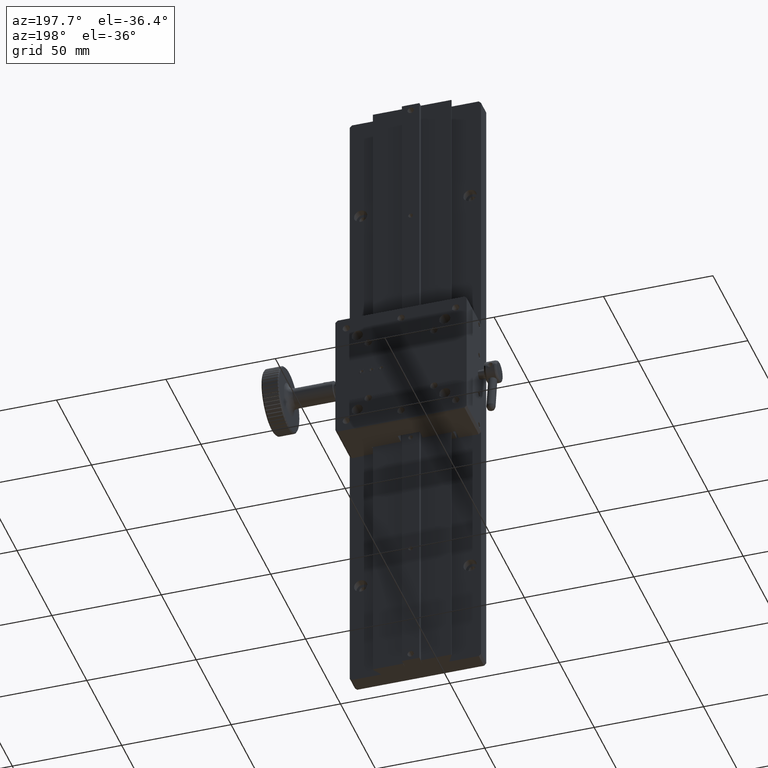
[diagram: clean part render]
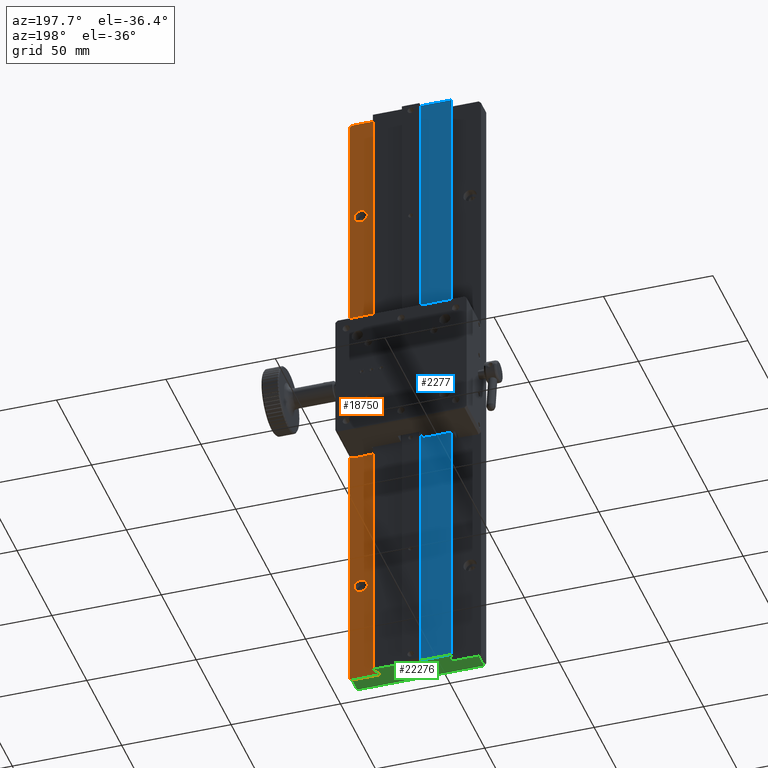
[diagram: same view with three faces highlighted in distinct colors, each labeled with its STEP entity id]
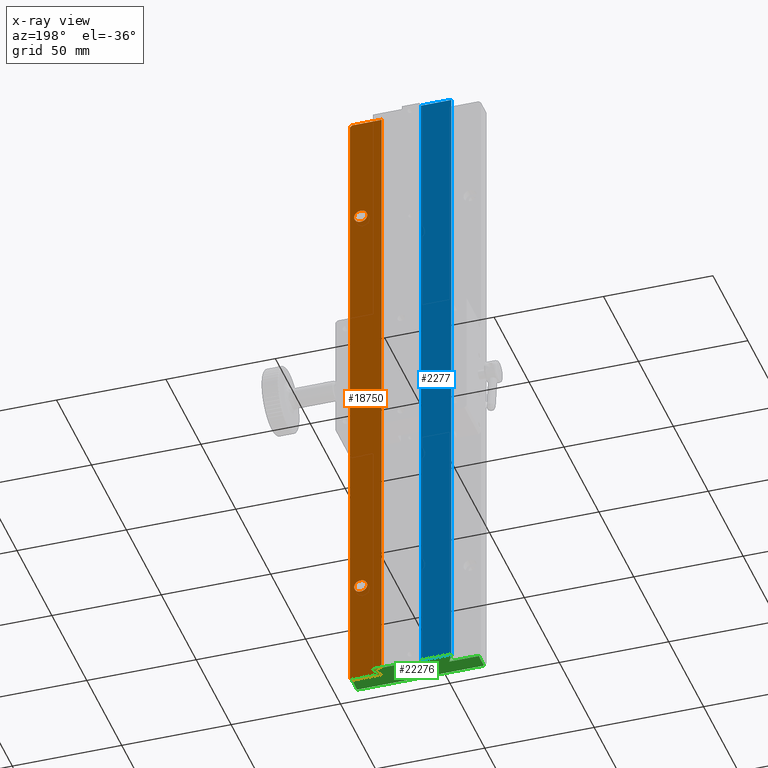
[diagram: x-ray of the same camera — body ghosted, the three highlighted faces saturated]
A machine part, auxiliary view with three faces highlighted in distinct colors.
The next image is the same camera in x-ray (body ghosted, the three faces saturated) — at least one of them is partly hidden behind the body in this view.
Their STEP definitions:

[orange] entity #18750 — the highlighted planar face has unit normal (0, -1, 0).
#1212 = LINE ( 'NONE', #18294, #95864 ) ;
#2944 = DIRECTION ( 'NONE',  ( -6.982962677686266711E-15, 1.000000000000000000, 0.000000000000000000 ) ) ;
#2988 = VERTEX_POINT ( 'NONE', #66135 ) ;
#4184 = EDGE_CURVE ( 'NONE', #31973, #60785, #65015, .T. ) ;
#4363 = VERTEX_POINT ( 'NONE', #55194 ) ;
#5016 = DIRECTION ( 'NONE',  ( -1.000000000000000000, -6.938893903907222067E-15, 0.000000000000000000 ) ) ;
#7829 = EDGE_LOOP ( 'NONE', ( #47907, #10947, #77065, #24055, #78089, #79209 ) ) ;
#8127 = CARTESIAN_POINT ( 'NONE',  ( 141.9082209827905956, 59.02535012998670538, 214.1048062710991360 ) ) ;
#8333 = CARTESIAN_POINT ( 'NONE',  ( 128.4082209827906240, 59.02535012998663433, -85.89519372890084981 ) ) ;
#9141 = CARTESIAN_POINT ( 'NONE',  ( 128.4082209827906240, 59.02535012998663433, 214.1048062710991644 ) ) ;
#10947 = ORIENTED_EDGE ( 'NONE', *, *, #54498, .F. ) ;
#11446 = DIRECTION ( 'NONE',  ( -6.982962677686266711E-15, 1.000000000000000000, 0.000000000000000000 ) ) ;
#13249 = ORIENTED_EDGE ( 'NONE', *, *, #99135, .F. ) ;
#14311 = CARTESIAN_POINT ( 'NONE',  ( 142.9082209827905956, 59.02535012998673380, 214.1048062710991644 ) ) ;
#15782 = EDGE_CURVE ( 'NONE', #79137, #79137, #17946, .T. ) ;
#17738 = FACE_BOUND ( 'NONE', #18350, .T. ) ;
#17783 = VECTOR ( 'NONE', #96095, 1000.000000000000000 ) ;
#17946 = CIRCLE ( 'NONE', #79143, 3.000000000000002665 ) ;
#18165 = LINE ( 'NONE', #65256, #43534 ) ;
#18294 = CARTESIAN_POINT ( 'NONE',  ( 112.9082209827906524, 59.02535012998663433, -85.89519372890084981 ) ) ;
#18350 = EDGE_LOOP ( 'NONE', ( #52710 ) ) ;
#18750 = ADVANCED_FACE ( 'NONE', ( #65853, #17738, #79877, #40517 ), #49291, .F. ) ;
#22946 = CIRCLE ( 'NONE', #34552, 3.000000000000002665 ) ;
#24055 = ORIENTED_EDGE ( 'NONE', *, *, #4184, .T. ) ;
#26518 = DIRECTION ( 'NONE',  ( 1.000000000000000000, 6.982962677686266711E-15, 0.000000000000000000 ) ) ;
#28311 = CARTESIAN_POINT ( 'NONE',  ( 137.9082209827905956, 59.02535012998670538, -35.89519372890089244 ) ) ;
#30199 = EDGE_CURVE ( 'NONE', #4363, #60785, #57035, .T. ) ;
#31973 = VERTEX_POINT ( 'NONE', #9141 ) ;
#34530 = DIRECTION ( 'NONE',  ( -1.000000000000000000, -6.938893903907222067E-15, 0.000000000000000000 ) ) ;
#34552 = AXIS2_PLACEMENT_3D ( 'NONE', #28311, #2944, #5016 ) ;
#37109 = LINE ( 'NONE', #14311, #99842 ) ;
#40517 = FACE_BOUND ( 'NONE', #54236, .T. ) ;
#40525 = CARTESIAN_POINT ( 'NONE',  ( 141.9082209827905956, 59.02535012998670538, -85.89519372890083559 ) ) ;
#42682 = VECTOR ( 'NONE', #47333, 1000.000000000000114 ) ;
#43534 = VECTOR ( 'NONE', #57993, 1000.000000000000000 ) ;
#44665 = EDGE_CURVE ( 'NONE', #2988, #2988, #22946, .T. ) ;
#47333 = DIRECTION ( 'NONE',  ( -0.7071067811865474617, -4.906538933386793298E-15, 0.7071067811865474617 ) ) ;
#47907 = ORIENTED_EDGE ( 'NONE', *, *, #50070, .F. ) ;
#49291 = PLANE ( 'NONE',  #98873 ) ;
#49919 = CARTESIAN_POINT ( 'NONE',  ( 142.9082209827905956, 59.02535012998672670, -84.89519372890084981 ) ) ;
#50070 = EDGE_CURVE ( 'NONE', #55115, #51987, #73244, .T. ) ;
#50326 = CARTESIAN_POINT ( 'NONE',  ( 142.9082209827905956, 59.02535012998673380, -84.89519372890083559 ) ) ;
#51093 = CARTESIAN_POINT ( 'NONE',  ( 137.9082209827905956, 59.02535012998670538, 164.1048062710991360 ) ) ;
#51987 = VERTEX_POINT ( 'NONE', #50326 ) ;
#52710 = ORIENTED_EDGE ( 'NONE', *, *, #44665, .F. ) ;
#53114 = VERTEX_POINT ( 'NONE', #8333 ) ;
#54236 = EDGE_LOOP ( 'NONE', ( #57219 ) ) ;
#54498 = EDGE_CURVE ( 'NONE', #53114, #55115, #1212, .T. ) ;
#54804 = CARTESIAN_POINT ( 'NONE',  ( 134.9082209827905956, 59.02535012998668407, 64.10480627109913598 ) ) ;
#55115 = VERTEX_POINT ( 'NONE', #40525 ) ;
#55194 = CARTESIAN_POINT ( 'NONE',  ( 142.9082209827905956, 59.02535012998673380, 213.1048062710991644 ) ) ;
#57035 = LINE ( 'NONE', #78433, #42682 ) ;
#57219 = ORIENTED_EDGE ( 'NONE', *, *, #15782, .F. ) ;
#57615 = DIRECTION ( 'NONE',  ( 1.000000000000000000, -0.000000000000000000, 0.000000000000000000 ) ) ;
#57993 = DIRECTION ( 'NONE',  ( 0.000000000000000000, 0.000000000000000000, 1.000000000000000000 ) ) ;
#58039 = CARTESIAN_POINT ( 'NONE',  ( 137.9082209827905956, 59.02535012998670538, 64.10480627109913598 ) ) ;
#58755 = CARTESIAN_POINT ( 'NONE',  ( 134.9082209827905956, 59.02535012998668407, 164.1048062710991360 ) ) ;
#60785 = VERTEX_POINT ( 'NONE', #8127 ) ;
#64840 = DIRECTION ( 'NONE',  ( 6.982962677686266711E-15, -1.000000000000000000, 0.000000000000000000 ) ) ;
#65015 = LINE ( 'NONE', #71759, #17783 ) ;
#65256 = CARTESIAN_POINT ( 'NONE',  ( 128.4082209827906240, 59.02535012998663433, 214.1048062710991644 ) ) ;
#65853 = FACE_OUTER_BOUND ( 'NONE', #7829, .T. ) ;
#66135 = CARTESIAN_POINT ( 'NONE',  ( 134.9082209827905956, 59.02535012998668407, -35.89519372890089244 ) ) ;
#66316 = DIRECTION ( 'NONE',  ( -1.000000000000000000, -6.938893903907222067E-15, 0.000000000000000000 ) ) ;
#67673 = DIRECTION ( 'NONE',  ( 0.000000000000000000, -0.000000000000000000, -1.000000000000000000 ) ) ;
#68733 = AXIS2_PLACEMENT_3D ( 'NONE', #51093, #99253, #34530 ) ;
#71580 = CARTESIAN_POINT ( 'NONE',  ( 142.9082209827905956, 59.02535012998673380, 214.1048062710991644 ) ) ;
#71759 = CARTESIAN_POINT ( 'NONE',  ( 112.9082209827906524, 59.02535012998663433, 214.1048062710991644 ) ) ;
#72325 = EDGE_CURVE ( 'NONE', #53114, #31973, #18165, .T. ) ;
#73244 = LINE ( 'NONE', #49919, #80868 ) ;
#75002 = EDGE_CURVE ( 'NONE', #4363, #51987, #37109, .T. ) ;
#77065 = ORIENTED_EDGE ( 'NONE', *, *, #72325, .T. ) ;
#77581 = EDGE_LOOP ( 'NONE', ( #13249 ) ) ;
#78089 = ORIENTED_EDGE ( 'NONE', *, *, #30199, .F. ) ;
#78433 = CARTESIAN_POINT ( 'NONE',  ( 142.9082209827905956, 59.02535012998673380, 213.1048062710991644 ) ) ;
#79137 = VERTEX_POINT ( 'NONE', #54804 ) ;
#79143 = AXIS2_PLACEMENT_3D ( 'NONE', #58039, #11446, #66316 ) ;
#79209 = ORIENTED_EDGE ( 'NONE', *, *, #75002, .T. ) ;
#79877 = FACE_BOUND ( 'NONE', #77581, .T. ) ;
#80868 = VECTOR ( 'NONE', #91341, 1000.000000000000114 ) ;
#91341 = DIRECTION ( 'NONE',  ( 0.7071067811865474617, -0.000000000000000000, 0.7071067811865474617 ) ) ;
#95864 = VECTOR ( 'NONE', #57615, 1000.000000000000000 ) ;
#96095 = DIRECTION ( 'NONE',  ( 1.000000000000000000, -0.000000000000000000, 0.000000000000000000 ) ) ;
#98114 = VERTEX_POINT ( 'NONE', #58755 ) ;
#98873 = AXIS2_PLACEMENT_3D ( 'NONE', #71580, #64840, #26518 ) ;
#99135 = EDGE_CURVE ( 'NONE', #98114, #98114, #101751, .T. ) ;
#99253 = DIRECTION ( 'NONE',  ( -6.982962677686266711E-15, 1.000000000000000000, 0.000000000000000000 ) ) ;
#99842 = VECTOR ( 'NONE', #67673, 1000.000000000000000 ) ;
#101751 = CIRCLE ( 'NONE', #68733, 3.000000000000002665 ) ;

[blue] entity #2277 — the highlighted planar face has unit normal (0, -1, 0).
#2277 = ADVANCED_FACE ( 'NONE', ( #70855 ), #21222, .F. ) ;
#4333 = CARTESIAN_POINT ( 'NONE',  ( 94.99467471759916748, 63.72535012998639559, -85.89519372890083559 ) ) ;
#5889 = LINE ( 'NONE', #29696, #42768 ) ;
#7558 = VERTEX_POINT ( 'NONE', #4333 ) ;
#8192 = ORIENTED_EDGE ( 'NONE', *, *, #50300, .T. ) ;
#11491 = VECTOR ( 'NONE', #65033, 1000.000000000000000 ) ;
#11735 = VERTEX_POINT ( 'NONE', #80228 ) ;
#14459 = DIRECTION ( 'NONE',  ( 1.000000000000000000, 7.227918770390267180E-15, 0.000000000000000000 ) ) ;
#19001 = ORIENTED_EDGE ( 'NONE', *, *, #34351, .T. ) ;
#21222 = PLANE ( 'NONE',  #91166 ) ;
#22233 = CARTESIAN_POINT ( 'NONE',  ( 94.69467471759924138, 63.72535012998639559, 214.1048062710991644 ) ) ;
#29696 = CARTESIAN_POINT ( 'NONE',  ( 112.9082209827906524, 63.72535012998639559, 214.1048062710991644 ) ) ;
#32422 = EDGE_CURVE ( 'NONE', #85242, #7558, #48461, .T. ) ;
#34281 = CARTESIAN_POINT ( 'NONE',  ( 112.9082209827906524, 63.72535012998639559, -85.89519372890084981 ) ) ;
#34351 = EDGE_CURVE ( 'NONE', #11735, #94101, #84150, .T. ) ;
#37033 = CARTESIAN_POINT ( 'NONE',  ( 108.8582209827905700, 63.72535012998649506, 214.1048062710991644 ) ) ;
#42768 = VECTOR ( 'NONE', #53488, 1000.000000000000000 ) ;
#48461 = LINE ( 'NONE', #88854, #11491 ) ;
#48785 = LINE ( 'NONE', #34281, #77029 ) ;
#50300 = EDGE_CURVE ( 'NONE', #85242, #11735, #5889, .T. ) ;
#52635 = EDGE_LOOP ( 'NONE', ( #72843, #8192, #19001, #84612 ) ) ;
#52779 = DIRECTION ( 'NONE',  ( 7.227918770390267180E-15, -1.000000000000000000, 0.000000000000000000 ) ) ;
#53488 = DIRECTION ( 'NONE',  ( 1.000000000000000000, -0.000000000000000000, 0.000000000000000000 ) ) ;
#65033 = DIRECTION ( 'NONE',  ( 0.000000000000000000, -0.000000000000000000, -1.000000000000000000 ) ) ;
#67077 = DIRECTION ( 'NONE',  ( -0.000000000000000000, -0.000000000000000000, -1.000000000000000000 ) ) ;
#70855 = FACE_OUTER_BOUND ( 'NONE', #52635, .T. ) ;
#72843 = ORIENTED_EDGE ( 'NONE', *, *, #32422, .F. ) ;
#77029 = VECTOR ( 'NONE', #90195, 1000.000000000000000 ) ;
#80228 = CARTESIAN_POINT ( 'NONE',  ( 108.8582209827905700, 63.72535012998648085, 214.1048062710991644 ) ) ;
#84150 = LINE ( 'NONE', #37033, #84393 ) ;
#84393 = VECTOR ( 'NONE', #67077, 1000.000000000000000 ) ;
#84612 = ORIENTED_EDGE ( 'NONE', *, *, #100301, .F. ) ;
#85242 = VERTEX_POINT ( 'NONE', #98977 ) ;
#85907 = CARTESIAN_POINT ( 'NONE',  ( 108.8582209827905700, 63.72535012998648085, -85.89519372890083559 ) ) ;
#88854 = CARTESIAN_POINT ( 'NONE',  ( 94.99467471759916748, 63.72535012998639559, 214.1048062710991644 ) ) ;
#90195 = DIRECTION ( 'NONE',  ( 1.000000000000000000, -0.000000000000000000, 0.000000000000000000 ) ) ;
#91166 = AXIS2_PLACEMENT_3D ( 'NONE', #22233, #52779, #14459 ) ;
#94101 = VERTEX_POINT ( 'NONE', #85907 ) ;
#98977 = CARTESIAN_POINT ( 'NONE',  ( 94.99467471759916748, 63.72535012998639559, 214.1048062710991360 ) ) ;
#100301 = EDGE_CURVE ( 'NONE', #7558, #94101, #48785, .T. ) ;

[green] entity #22276 — the highlighted planar face has unit normal (0, 0, -1).
#93 = CARTESIAN_POINT ( 'NONE',  ( 141.9082209827906524, 51.52535012998672670, -85.89519372890083559 ) ) ;
#1212 = LINE ( 'NONE', #18294, #95864 ) ;
#2809 = VERTEX_POINT ( 'NONE', #65137 ) ;
#4333 = CARTESIAN_POINT ( 'NONE',  ( 94.99467471759916748, 63.72535012998639559, -85.89519372890083559 ) ) ;
#7558 = VERTEX_POINT ( 'NONE', #4333 ) ;
#8333 = CARTESIAN_POINT ( 'NONE',  ( 128.4082209827906240, 59.02535012998663433, -85.89519372890084981 ) ) ;
#9431 = VERTEX_POINT ( 'NONE', #93 ) ;
#11168 = EDGE_CURVE ( 'NONE', #55115, #9431, #25322, .T. ) ;
#14524 = VECTOR ( 'NONE', #47698, 1000.000000000000000 ) ;
#14606 = FACE_OUTER_BOUND ( 'NONE', #61898, .T. ) ;
#14670 = VERTEX_POINT ( 'NONE', #21389 ) ;
#15410 = ORIENTED_EDGE ( 'NONE', *, *, #68554, .T. ) ;
#16030 = VECTOR ( 'NONE', #61657, 1000.000000000000114 ) ;
#18277 = DIRECTION ( 'NONE',  ( 0.000000000000000000, 1.000000000000000000, 0.000000000000000000 ) ) ;
#18294 = CARTESIAN_POINT ( 'NONE',  ( 112.9082209827906524, 59.02535012998663433, -85.89519372890084981 ) ) ;
#18787 = ORIENTED_EDGE ( 'NONE', *, *, #65530, .T. ) ;
#19355 = AXIS2_PLACEMENT_3D ( 'NONE', #21371, #77781, #101584 ) ;
#19859 = CARTESIAN_POINT ( 'NONE',  ( 112.9082209827906524, 61.42535012998649080, -85.89519372890084981 ) ) ;
#21371 = CARTESIAN_POINT ( 'NONE',  ( 112.9082209827906524, 51.52535012998652775, -85.89519372890084981 ) ) ;
#21389 = CARTESIAN_POINT ( 'NONE',  ( 116.9582209827906070, 61.42535012998680344, -85.89519372890083559 ) ) ;
#21565 = CARTESIAN_POINT ( 'NONE',  ( 142.9082209827906524, 51.52535012998673380, -85.89519372890083559 ) ) ;
#22276 = ADVANCED_FACE ( 'NONE', ( #14606 ), #37907, .T. ) ;
#24078 = ORIENTED_EDGE ( 'NONE', *, *, #100301, .T. ) ;
#25322 = LINE ( 'NONE', #39311, #27994 ) ;
#25357 = ORIENTED_EDGE ( 'NONE', *, *, #90938, .T. ) ;
#26036 = ORIENTED_EDGE ( 'NONE', *, *, #100226, .T. ) ;
#26230 = ORIENTED_EDGE ( 'NONE', *, *, #54498, .T. ) ;
#26282 = LINE ( 'NONE', #66127, #99634 ) ;
#27054 = CARTESIAN_POINT ( 'NONE',  ( 116.9582209827906070, 51.52535012998652775, -85.89519372890084981 ) ) ;
#27507 = EDGE_CURVE ( 'NONE', #94101, #92988, #79822, .T. ) ;
#27994 = VECTOR ( 'NONE', #86943, 1000.000000000000000 ) ;
#30669 = VECTOR ( 'NONE', #80399, 1000.000000000000000 ) ;
#30706 = DIRECTION ( 'NONE',  ( 6.982962677686266711E-15, -1.000000000000000000, 0.000000000000000000 ) ) ;
#31583 = VECTOR ( 'NONE', #18277, 1000.000000000000000 ) ;
#32183 = CARTESIAN_POINT ( 'NONE',  ( 108.8582209827905700, 51.52535012998652775, -85.89519372890084981 ) ) ;
#33850 = VECTOR ( 'NONE', #94065, 1000.000000000000000 ) ;
#34281 = CARTESIAN_POINT ( 'NONE',  ( 112.9082209827906524, 63.72535012998639559, -85.89519372890084981 ) ) ;
#34920 = VERTEX_POINT ( 'NONE', #87175 ) ;
#36179 = EDGE_CURVE ( 'NONE', #92988, #14670, #90779, .T. ) ;
#36573 = ORIENTED_EDGE ( 'NONE', *, *, #40026, .T. ) ;
#37617 = ORIENTED_EDGE ( 'NONE', *, *, #100837, .T. ) ;
#37907 = PLANE ( 'NONE',  #19355 ) ;
#38458 = CARTESIAN_POINT ( 'NONE',  ( 130.8217672479818816, 63.72535012998664428, -85.89519372890084981 ) ) ;
#39311 = CARTESIAN_POINT ( 'NONE',  ( 141.9082209827905956, 51.52535012998652775, -85.89519372890084981 ) ) ;
#40026 = EDGE_CURVE ( 'NONE', #14670, #84053, #50335, .T. ) ;
#40437 = CARTESIAN_POINT ( 'NONE',  ( 130.8217672479819100, 63.20573488771602655, -85.89519372890086402 ) ) ;
#40525 = CARTESIAN_POINT ( 'NONE',  ( 141.9082209827905956, 59.02535012998670538, -85.89519372890083559 ) ) ;
#40932 = VERTEX_POINT ( 'NONE', #40437 ) ;
#41413 = ORIENTED_EDGE ( 'NONE', *, *, #27507, .T. ) ;
#43753 = DIRECTION ( 'NONE',  ( -6.982962677686266711E-15, 1.000000000000000000, 0.000000000000000000 ) ) ;
#43867 = ORIENTED_EDGE ( 'NONE', *, *, #81403, .T. ) ;
#46529 = LINE ( 'NONE', #102439, #96514 ) ;
#47698 = DIRECTION ( 'NONE',  ( -0.000000000000000000, -1.000000000000000000, -0.000000000000000000 ) ) ;
#48043 = DIRECTION ( 'NONE',  ( 1.000000000000000000, -0.000000000000000000, 0.000000000000000000 ) ) ;
#48785 = LINE ( 'NONE', #34281, #77029 ) ;
#50335 = LINE ( 'NONE', #27054, #31583 ) ;
#53114 = VERTEX_POINT ( 'NONE', #8333 ) ;
#53176 = CARTESIAN_POINT ( 'NONE',  ( 83.90822098279068086, 51.52535012998652775, -85.89519372890084981 ) ) ;
#54365 = VECTOR ( 'NONE', #30706, 1000.000000000000000 ) ;
#54498 = EDGE_CURVE ( 'NONE', #53114, #55115, #1212, .T. ) ;
#54858 = CARTESIAN_POINT ( 'NONE',  ( 83.90822098279066665, 51.52535012998642117, -85.89519372890083559 ) ) ;
#55115 = VERTEX_POINT ( 'NONE', #40525 ) ;
#56420 = ORIENTED_EDGE ( 'NONE', *, *, #93812, .T. ) ;
#56990 = VECTOR ( 'NONE', #43753, 1000.000000000000000 ) ;
#57615 = DIRECTION ( 'NONE',  ( 1.000000000000000000, -0.000000000000000000, 0.000000000000000000 ) ) ;
#58111 = VERTEX_POINT ( 'NONE', #54858 ) ;
#60137 = DIRECTION ( 'NONE',  ( -0.5000000000000176525, 0.8660254037844283825, 0.000000000000000000 ) ) ;
#60293 = LINE ( 'NONE', #83623, #56990 ) ;
#61657 = DIRECTION ( 'NONE',  ( -0.5000000000000029976, -0.8660254037844369313, 0.000000000000000000 ) ) ;
#61898 = EDGE_LOOP ( 'NONE', ( #15410, #18787, #26230, #83708, #26036, #43867, #100736, #37617, #56420, #24078, #41413, #86630, #36573, #25357 ) ) ;
#62674 = CARTESIAN_POINT ( 'NONE',  ( 130.8217672479818816, 63.20573488771599813, -85.89519372890084981 ) ) ;
#64306 = CARTESIAN_POINT ( 'NONE',  ( 116.9582209827906070, 63.72535012998655191, -85.89519372890083559 ) ) ;
#65137 = CARTESIAN_POINT ( 'NONE',  ( 83.90822098279063823, 59.02535012998631458, -85.89519372890084981 ) ) ;
#65530 = EDGE_CURVE ( 'NONE', #40932, #53114, #70441, .T. ) ;
#66127 = CARTESIAN_POINT ( 'NONE',  ( 112.9082209827906524, 59.02535012998631458, -85.89519372890084981 ) ) ;
#66521 = CARTESIAN_POINT ( 'NONE',  ( 108.8582209827905700, 61.42535012998649080, -85.89519372890083559 ) ) ;
#67467 = DIRECTION ( 'NONE',  ( 1.000000000000000000, -0.000000000000000000, 0.000000000000000000 ) ) ;
#68554 = EDGE_CURVE ( 'NONE', #77328, #40932, #79870, .T. ) ;
#69225 = LINE ( 'NONE', #53176, #33850 ) ;
#70441 = LINE ( 'NONE', #62674, #16030 ) ;
#71127 = EDGE_CURVE ( 'NONE', #2809, #34920, #26282, .T. ) ;
#75700 = CARTESIAN_POINT ( 'NONE',  ( 97.40822098279059560, 59.02535012998641406, -85.89519372890084981 ) ) ;
#77029 = VECTOR ( 'NONE', #90195, 1000.000000000000000 ) ;
#77328 = VERTEX_POINT ( 'NONE', #79389 ) ;
#77781 = DIRECTION ( 'NONE',  ( 0.000000000000000000, 0.000000000000000000, -1.000000000000000000 ) ) ;
#78655 = VECTOR ( 'NONE', #60137, 1000.000000000000114 ) ;
#79389 = CARTESIAN_POINT ( 'NONE',  ( 130.8217672479818816, 63.72535012998661585, -85.89519372890083559 ) ) ;
#79822 = LINE ( 'NONE', #32183, #14524 ) ;
#79870 = LINE ( 'NONE', #38458, #54365 ) ;
#80399 = DIRECTION ( 'NONE',  ( -1.000000000000000000, -6.982962677686266711E-15, 0.000000000000000000 ) ) ;
#81403 = EDGE_CURVE ( 'NONE', #58111, #2809, #69225, .T. ) ;
#82672 = VECTOR ( 'NONE', #67467, 1000.000000000000000 ) ;
#83623 = CARTESIAN_POINT ( 'NONE',  ( 94.99467471759916748, 63.72535012998639559, -85.89519372890084981 ) ) ;
#83708 = ORIENTED_EDGE ( 'NONE', *, *, #11168, .T. ) ;
#84053 = VERTEX_POINT ( 'NONE', #64306 ) ;
#85221 = CARTESIAN_POINT ( 'NONE',  ( 94.99467471759916748, 63.20573488771589865, -85.89519372890089244 ) ) ;
#85907 = CARTESIAN_POINT ( 'NONE',  ( 108.8582209827905700, 63.72535012998648085, -85.89519372890083559 ) ) ;
#86630 = ORIENTED_EDGE ( 'NONE', *, *, #36179, .T. ) ;
#86943 = DIRECTION ( 'NONE',  ( -0.000000000000000000, -1.000000000000000000, -0.000000000000000000 ) ) ;
#87175 = CARTESIAN_POINT ( 'NONE',  ( 97.40822098279060981, 59.02535012998638564, -85.89519372890084981 ) ) ;
#87916 = DIRECTION ( 'NONE',  ( 1.000000000000000000, -0.000000000000000000, 0.000000000000000000 ) ) ;
#90195 = DIRECTION ( 'NONE',  ( 1.000000000000000000, -0.000000000000000000, 0.000000000000000000 ) ) ;
#90779 = LINE ( 'NONE', #19859, #82672 ) ;
#90938 = EDGE_CURVE ( 'NONE', #84053, #77328, #46529, .T. ) ;
#92482 = LINE ( 'NONE', #21565, #30669 ) ;
#92988 = VERTEX_POINT ( 'NONE', #66521 ) ;
#93812 = EDGE_CURVE ( 'NONE', #99724, #7558, #60293, .T. ) ;
#94065 = DIRECTION ( 'NONE',  ( 0.000000000000000000, 1.000000000000000000, 0.000000000000000000 ) ) ;
#94101 = VERTEX_POINT ( 'NONE', #85907 ) ;
#95864 = VECTOR ( 'NONE', #57615, 1000.000000000000000 ) ;
#96514 = VECTOR ( 'NONE', #48043, 1000.000000000000000 ) ;
#99508 = LINE ( 'NONE', #75700, #78655 ) ;
#99634 = VECTOR ( 'NONE', #87916, 1000.000000000000000 ) ;
#99724 = VERTEX_POINT ( 'NONE', #85221 ) ;
#100226 = EDGE_CURVE ( 'NONE', #9431, #58111, #92482, .T. ) ;
#100301 = EDGE_CURVE ( 'NONE', #7558, #94101, #48785, .T. ) ;
#100736 = ORIENTED_EDGE ( 'NONE', *, *, #71127, .T. ) ;
#100837 = EDGE_CURVE ( 'NONE', #34920, #99724, #99508, .T. ) ;
#101584 = DIRECTION ( 'NONE',  ( -1.000000000000000000, 0.000000000000000000, -0.000000000000000000 ) ) ;
#102439 = CARTESIAN_POINT ( 'NONE',  ( 112.9082209827906524, 63.72535012998655191, -85.89519372890084981 ) ) ;